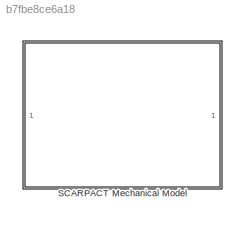
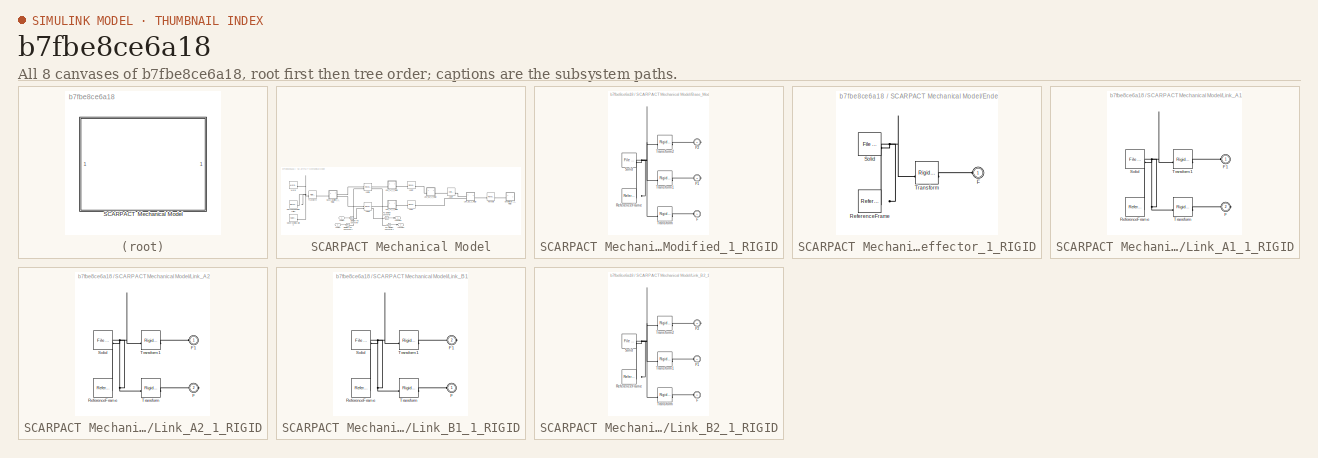
[diagram: thumbnail index - all 8 canvases of the model, root first then tree order]
MODEL slx_b7fbe8ce6a18
KIND model
CONFIG AbsTol = auto
CONFIG EnableMultiTasking = off
CONFIG FixedStep = auto
CONFIG MaxStep = auto
CONFIG MinStep = auto
CONFIG RelTol = 1e-3
CONFIG SampleTimeConstraint = Unconstrained
CONFIG SolverName = VariableStepAuto
CONFIG StartTime = 0.0
CONFIG StopTime = 10.0
WORKSPACE source: external: MATLAB File  (data not in archive)
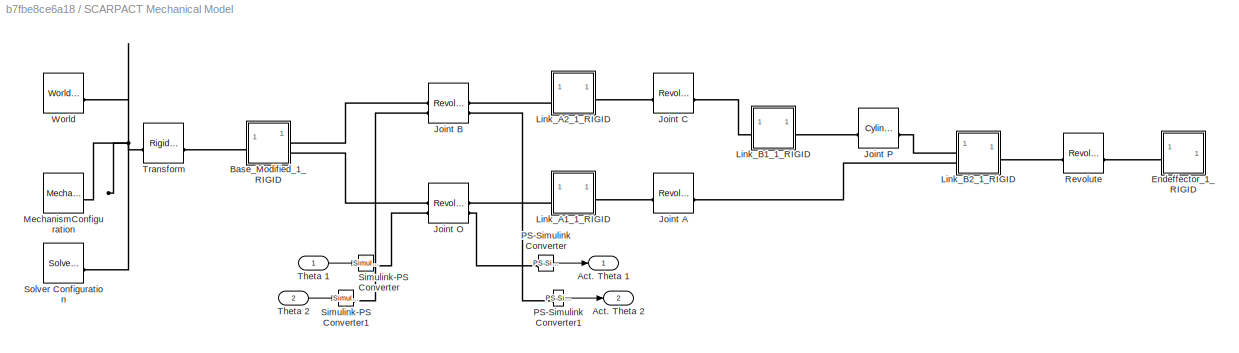
BLOCK [SubSystem] SCARPACT Mechanical Model
BLOCK [Outport] SCARPACT Mechanical Model/Act. Theta 1
BLOCK [Outport] SCARPACT Mechanical Model/Act. Theta 2
  Port = 2
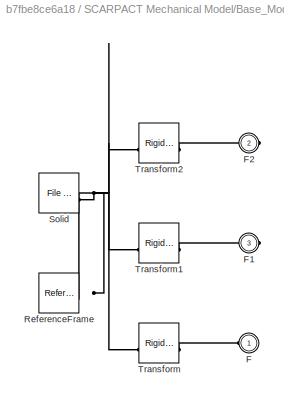
BLOCK [SubSystem] SCARPACT Mechanical Model/Base_Modified_1_RIGID
BLOCK [PMIOPort] SCARPACT Mechanical Model/Base_Modified_1_RIGID/F
  Side = Left
BLOCK [PMIOPort] SCARPACT Mechanical Model/Base_Modified_1_RIGID/F1
  Port = 3
  Side = Right
BLOCK [PMIOPort] SCARPACT Mechanical Model/Base_Modified_1_RIGID/F2
  Port = 2
  Side = Right
BLOCK [Reference] SCARPACT Mechanical Model/Base_Modified_1_RIGID/ReferenceFrame  REF=sm_lib/Frames and
Transforms/Reference
Frame
  SourceBlock = sm_lib/Frames and\nTransforms/Reference\nFrame
  SourceType = Reference\nFrame
BLOCK [Reference] SCARPACT Mechanical Model/Base_Modified_1_RIGID/Solid  REF=sm_lib/Body Elements/File Solid
  SourceBlock = sm_lib/Body Elements/File Solid
  SourceType = File Solid
BLOCK [Reference] SCARPACT Mechanical Model/Base_Modified_1_RIGID/Transform  REF=sm_lib/Frames and
Transforms/Rigid
Transform
  SourceBlock = sm_lib/Frames and\nTransforms/Rigid\nTransform
  SourceType = Rigid\nTransform
BLOCK [Reference] SCARPACT Mechanical Model/Base_Modified_1_RIGID/Transform1  REF=sm_lib/Frames and
Transforms/Rigid
Transform
  SourceBlock = sm_lib/Frames and\nTransforms/Rigid\nTransform
  SourceType = Rigid\nTransform
BLOCK [Reference] SCARPACT Mechanical Model/Base_Modified_1_RIGID/Transform2  REF=sm_lib/Frames and
Transforms/Rigid
Transform
  SourceBlock = sm_lib/Frames and\nTransforms/Rigid\nTransform
  SourceType = Rigid\nTransform
BLOCK [SubSystem] SCARPACT Mechanical Model/Endeffector_1_RIGID
BLOCK [PMIOPort] SCARPACT Mechanical Model/Endeffector_1_RIGID/F
  Side = Left
BLOCK [Reference] SCARPACT Mechanical Model/Endeffector_1_RIGID/ReferenceFrame  REF=sm_lib/Frames and
Transforms/Reference
Frame
  SourceBlock = sm_lib/Frames and\nTransforms/Reference\nFrame
  SourceType = Reference\nFrame
BLOCK [Reference] SCARPACT Mechanical Model/Endeffector_1_RIGID/Solid  REF=sm_lib/Body Elements/File Solid
  SourceBlock = sm_lib/Body Elements/File Solid
  SourceType = File Solid
BLOCK [Reference] SCARPACT Mechanical Model/Endeffector_1_RIGID/Transform  REF=sm_lib/Frames and
Transforms/Rigid
Transform
  SourceBlock = sm_lib/Frames and\nTransforms/Rigid\nTransform
  SourceType = Rigid\nTransform
BLOCK [Reference] SCARPACT Mechanical Model/Joint A  REF=sm_lib/Joints/Revolute Joint
  SourceBlock = sm_lib/Joints/Revolute Joint
  SourceType = Revolute Joint
BLOCK [Reference] SCARPACT Mechanical Model/Joint B  REF=sm_lib/Joints/Revolute Joint
  SourceBlock = sm_lib/Joints/Revolute Joint
  SourceType = Revolute Joint
BLOCK [Reference] SCARPACT Mechanical Model/Joint C  REF=sm_lib/Joints/Revolute Joint
  SourceBlock = sm_lib/Joints/Revolute Joint
  SourceType = Revolute Joint
BLOCK [Reference] SCARPACT Mechanical Model/Joint O  REF=sm_lib/Joints/Revolute Joint
  SourceBlock = sm_lib/Joints/Revolute Joint
  SourceType = Revolute Joint
BLOCK [Reference] SCARPACT Mechanical Model/Joint P  REF=sm_lib/Joints/Cylindrical
Joint
  SourceBlock = sm_lib/Joints/Cylindrical\nJoint
  SourceType = Cylindrical\nJoint
BLOCK [SubSystem] SCARPACT Mechanical Model/Link_A1_1_RIGID
BLOCK [PMIOPort] SCARPACT Mechanical Model/Link_A1_1_RIGID/F
  Port = 2
  Side = Right
BLOCK [PMIOPort] SCARPACT Mechanical Model/Link_A1_1_RIGID/F1
  Side = Left
BLOCK [Reference] SCARPACT Mechanical Model/Link_A1_1_RIGID/ReferenceFrame  REF=sm_lib/Frames and
Transforms/Reference
Frame
  SourceBlock = sm_lib/Frames and\nTransforms/Reference\nFrame
  SourceType = Reference\nFrame
BLOCK [Reference] SCARPACT Mechanical Model/Link_A1_1_RIGID/Solid  REF=sm_lib/Body Elements/File Solid
  SourceBlock = sm_lib/Body Elements/File Solid
  SourceType = File Solid
BLOCK [Reference] SCARPACT Mechanical Model/Link_A1_1_RIGID/Transform  REF=sm_lib/Frames and
Transforms/Rigid
Transform
  SourceBlock = sm_lib/Frames and\nTransforms/Rigid\nTransform
  SourceType = Rigid\nTransform
BLOCK [Reference] SCARPACT Mechanical Model/Link_A1_1_RIGID/Transform1  REF=sm_lib/Frames and
Transforms/Rigid
Transform
  SourceBlock = sm_lib/Frames and\nTransforms/Rigid\nTransform
  SourceType = Rigid\nTransform
BLOCK [SubSystem] SCARPACT Mechanical Model/Link_A2_1_RIGID
BLOCK [PMIOPort] SCARPACT Mechanical Model/Link_A2_1_RIGID/F
  Port = 2
  Side = Right
BLOCK [PMIOPort] SCARPACT Mechanical Model/Link_A2_1_RIGID/F1
  Side = Left
BLOCK [Reference] SCARPACT Mechanical Model/Link_A2_1_RIGID/ReferenceFrame  REF=sm_lib/Frames and
Transforms/Reference
Frame
  SourceBlock = sm_lib/Frames and\nTransforms/Reference\nFrame
  SourceType = Reference\nFrame
BLOCK [Reference] SCARPACT Mechanical Model/Link_A2_1_RIGID/Solid  REF=sm_lib/Body Elements/File Solid
  SourceBlock = sm_lib/Body Elements/File Solid
  SourceType = File Solid
BLOCK [Reference] SCARPACT Mechanical Model/Link_A2_1_RIGID/Transform  REF=sm_lib/Frames and
Transforms/Rigid
Transform
  SourceBlock = sm_lib/Frames and\nTransforms/Rigid\nTransform
  SourceType = Rigid\nTransform
BLOCK [Reference] SCARPACT Mechanical Model/Link_A2_1_RIGID/Transform1  REF=sm_lib/Frames and
Transforms/Rigid
Transform
  SourceBlock = sm_lib/Frames and\nTransforms/Rigid\nTransform
  SourceType = Rigid\nTransform
BLOCK [SubSystem] SCARPACT Mechanical Model/Link_B1_1_RIGID
BLOCK [PMIOPort] SCARPACT Mechanical Model/Link_B1_1_RIGID/F
  Side = Left
BLOCK [PMIOPort] SCARPACT Mechanical Model/Link_B1_1_RIGID/F1
  Port = 2
  Side = Right
BLOCK [Reference] SCARPACT Mechanical Model/Link_B1_1_RIGID/ReferenceFrame  REF=sm_lib/Frames and
Transforms/Reference
Frame
  SourceBlock = sm_lib/Frames and\nTransforms/Reference\nFrame
  SourceType = Reference\nFrame
BLOCK [Reference] SCARPACT Mechanical Model/Link_B1_1_RIGID/Solid  REF=sm_lib/Body Elements/File Solid
  SourceBlock = sm_lib/Body Elements/File Solid
  SourceType = File Solid
BLOCK [Reference] SCARPACT Mechanical Model/Link_B1_1_RIGID/Transform  REF=sm_lib/Frames and
Transforms/Rigid
Transform
  SourceBlock = sm_lib/Frames and\nTransforms/Rigid\nTransform
  SourceType = Rigid\nTransform
BLOCK [Reference] SCARPACT Mechanical Model/Link_B1_1_RIGID/Transform1  REF=sm_lib/Frames and
Transforms/Rigid
Transform
  SourceBlock = sm_lib/Frames and\nTransforms/Rigid\nTransform
  SourceType = Rigid\nTransform
BLOCK [SubSystem] SCARPACT Mechanical Model/Link_B2_1_RIGID
BLOCK [PMIOPort] SCARPACT Mechanical Model/Link_B2_1_RIGID/F
  Port = 2
  Side = Left
BLOCK [PMIOPort] SCARPACT Mechanical Model/Link_B2_1_RIGID/F1
  Side = Left
BLOCK [PMIOPort] SCARPACT Mechanical Model/Link_B2_1_RIGID/F2
  Port = 3
  Side = Right
BLOCK [Reference] SCARPACT Mechanical Model/Link_B2_1_RIGID/ReferenceFrame  REF=sm_lib/Frames and
Transforms/Reference
Frame
  SourceBlock = sm_lib/Frames and\nTransforms/Reference\nFrame
  SourceType = Reference\nFrame
BLOCK [Reference] SCARPACT Mechanical Model/Link_B2_1_RIGID/Solid  REF=sm_lib/Body Elements/File Solid
  SourceBlock = sm_lib/Body Elements/File Solid
  SourceType = File Solid
BLOCK [Reference] SCARPACT Mechanical Model/Link_B2_1_RIGID/Transform  REF=sm_lib/Frames and
Transforms/Rigid
Transform
  SourceBlock = sm_lib/Frames and\nTransforms/Rigid\nTransform
  SourceType = Rigid\nTransform
BLOCK [Reference] SCARPACT Mechanical Model/Link_B2_1_RIGID/Transform1  REF=sm_lib/Frames and
Transforms/Rigid
Transform
  SourceBlock = sm_lib/Frames and\nTransforms/Rigid\nTransform
  SourceType = Rigid\nTransform
BLOCK [Reference] SCARPACT Mechanical Model/Link_B2_1_RIGID/Transform2  REF=sm_lib/Frames and
Transforms/Rigid
Transform
  SourceBlock = sm_lib/Frames and\nTransforms/Rigid\nTransform
  SourceType = Rigid\nTransform
BLOCK [Reference] SCARPACT Mechanical Model/MechanismConfiguration  REF=sm_lib/Utilities/Mechanism
Configuration
  SourceBlock = sm_lib/Utilities/Mechanism\nConfiguration
  SourceType = Mechanism\nConfiguration
BLOCK [Reference] SCARPACT Mechanical Model/PS-Simulink Converter  REF=nesl_utility/PS-Simulink
Converter
  SourceBlock = nesl_utility/PS-Simulink\nConverter
  SourceType = PS-Simulink\nConverter
BLOCK [Reference] SCARPACT Mechanical Model/PS-Simulink Converter1  REF=nesl_utility/PS-Simulink
Converter
  SourceBlock = nesl_utility/PS-Simulink\nConverter
  SourceType = PS-Simulink\nConverter
BLOCK [Reference] SCARPACT Mechanical Model/Revolute  REF=sm_lib/Joints/Revolute Joint
  SourceBlock = sm_lib/Joints/Revolute Joint
  SourceType = Revolute Joint
BLOCK [Reference] SCARPACT Mechanical Model/Simulink-PS Converter  REF=nesl_utility/Simulink-PS
Converter
  SourceBlock = nesl_utility/Simulink-PS\nConverter
  SourceType = Simulink-PS\nConverter
BLOCK [Reference] SCARPACT Mechanical Model/Simulink-PS Converter1  REF=nesl_utility/Simulink-PS
Converter
  SourceBlock = nesl_utility/Simulink-PS\nConverter
  SourceType = Simulink-PS\nConverter
BLOCK [Reference] SCARPACT Mechanical Model/Solver Configuration  REF=nesl_utility/Solver
Configuration
  SourceBlock = nesl_utility/Solver\nConfiguration
  SourceType = Solver\nConfiguration
BLOCK [Inport] SCARPACT Mechanical Model/Theta 1
BLOCK [Inport] SCARPACT Mechanical Model/Theta 2
  Port = 2
BLOCK [Reference] SCARPACT Mechanical Model/Transform  REF=sm_lib/Frames and
Transforms/Rigid
Transform
  SourceBlock = sm_lib/Frames and\nTransforms/Rigid\nTransform
  SourceType = Rigid\nTransform
BLOCK [Reference] SCARPACT Mechanical Model/World  REF=sm_lib/Frames and
Transforms/World Frame
  SourceBlock = sm_lib/Frames and\nTransforms/World Frame
  SourceType = World Frame
LINE SCARPACT Mechanical Model/PS-Simulink Converter1:1 -> SCARPACT Mechanical Model/Act. Theta 2:1
LINE SCARPACT Mechanical Model/PS-Simulink Converter:1 -> SCARPACT Mechanical Model/Act. Theta 1:1
LINE SCARPACT Mechanical Model/Theta 1:1 -> SCARPACT Mechanical Model/Simulink-PS Converter:1
LINE SCARPACT Mechanical Model/Theta 2:1 -> SCARPACT Mechanical Model/Simulink-PS Converter1:1
PLINE SCARPACT Mechanical Model/Base_Modified_1_RIGID/F1:RConn1 -- SCARPACT Mechanical Model/Base_Modified_1_RIGID/Transform1:RConn1
PLINE SCARPACT Mechanical Model/Base_Modified_1_RIGID/F2:RConn1 -- SCARPACT Mechanical Model/Base_Modified_1_RIGID/Transform2:RConn1
PLINE SCARPACT Mechanical Model/Base_Modified_1_RIGID/F:RConn1 -- SCARPACT Mechanical Model/Base_Modified_1_RIGID/Transform:RConn1
PNET net1: SCARPACT Mechanical Model/Base_Modified_1_RIGID/ReferenceFrame:RConn1 -- SCARPACT Mechanical Model/Base_Modified_1_RIGID/Solid:RConn1 -- SCARPACT Mechanical Model/Base_Modified_1_RIGID/Transform1:LConn1 -- SCARPACT Mechanical Model/Base_Modified_1_RIGID/Transform2:LConn1 -- SCARPACT Mechanical Model/Base_Modified_1_RIGID/Transform:LConn1
PLINE SCARPACT Mechanical Model/Base_Modified_1_RIGID:LConn1 -- SCARPACT Mechanical Model/Transform:RConn1
PLINE SCARPACT Mechanical Model/Base_Modified_1_RIGID:RConn1 -- SCARPACT Mechanical Model/Joint B:LConn1
PLINE SCARPACT Mechanical Model/Base_Modified_1_RIGID:RConn2 -- SCARPACT Mechanical Model/Joint O:LConn1
PLINE SCARPACT Mechanical Model/Endeffector_1_RIGID/F:RConn1 -- SCARPACT Mechanical Model/Endeffector_1_RIGID/Transform:RConn1
PNET net2: SCARPACT Mechanical Model/Endeffector_1_RIGID/ReferenceFrame:RConn1 -- SCARPACT Mechanical Model/Endeffector_1_RIGID/Solid:RConn1 -- SCARPACT Mechanical Model/Endeffector_1_RIGID/Transform:LConn1
PLINE SCARPACT Mechanical Model/Endeffector_1_RIGID:LConn1 -- SCARPACT Mechanical Model/Revolute:RConn1
PLINE SCARPACT Mechanical Model/Joint A:LConn1 -- SCARPACT Mechanical Model/Link_A1_1_RIGID:RConn1
PLINE SCARPACT Mechanical Model/Joint A:RConn1 -- SCARPACT Mechanical Model/Link_B2_1_RIGID:LConn2
PLINE SCARPACT Mechanical Model/Joint B:LConn2 -- SCARPACT Mechanical Model/Simulink-PS Converter1:RConn1
PLINE SCARPACT Mechanical Model/Joint B:RConn1 -- SCARPACT Mechanical Model/Link_A2_1_RIGID:LConn1
PLINE SCARPACT Mechanical Model/Joint B:RConn2 -- SCARPACT Mechanical Model/PS-Simulink Converter1:LConn1
PLINE SCARPACT Mechanical Model/Joint C:LConn1 -- SCARPACT Mechanical Model/Link_A2_1_RIGID:RConn1
PLINE SCARPACT Mechanical Model/Joint C:RConn1 -- SCARPACT Mechanical Model/Link_B1_1_RIGID:LConn1
PLINE SCARPACT Mechanical Model/Joint O:LConn2 -- SCARPACT Mechanical Model/Simulink-PS Converter:RConn1
PLINE SCARPACT Mechanical Model/Joint O:RConn1 -- SCARPACT Mechanical Model/Link_A1_1_RIGID:LConn1
PLINE SCARPACT Mechanical Model/Joint O:RConn2 -- SCARPACT Mechanical Model/PS-Simulink Converter:LConn1
PLINE SCARPACT Mechanical Model/Joint P:LConn1 -- SCARPACT Mechanical Model/Link_B1_1_RIGID:RConn1
PLINE SCARPACT Mechanical Model/Joint P:RConn1 -- SCARPACT Mechanical Model/Link_B2_1_RIGID:LConn1
PLINE SCARPACT Mechanical Model/Link_A1_1_RIGID/F1:RConn1 -- SCARPACT Mechanical Model/Link_A1_1_RIGID/Transform1:RConn1
PLINE SCARPACT Mechanical Model/Link_A1_1_RIGID/F:RConn1 -- SCARPACT Mechanical Model/Link_A1_1_RIGID/Transform:RConn1
PNET net3: SCARPACT Mechanical Model/Link_A1_1_RIGID/ReferenceFrame:RConn1 -- SCARPACT Mechanical Model/Link_A1_1_RIGID/Solid:RConn1 -- SCARPACT Mechanical Model/Link_A1_1_RIGID/Transform1:LConn1 -- SCARPACT Mechanical Model/Link_A1_1_RIGID/Transform:LConn1
PLINE SCARPACT Mechanical Model/Link_A2_1_RIGID/F1:RConn1 -- SCARPACT Mechanical Model/Link_A2_1_RIGID/Transform1:RConn1
PLINE SCARPACT Mechanical Model/Link_A2_1_RIGID/F:RConn1 -- SCARPACT Mechanical Model/Link_A2_1_RIGID/Transform:RConn1
PNET net4: SCARPACT Mechanical Model/Link_A2_1_RIGID/ReferenceFrame:RConn1 -- SCARPACT Mechanical Model/Link_A2_1_RIGID/Solid:RConn1 -- SCARPACT Mechanical Model/Link_A2_1_RIGID/Transform1:LConn1 -- SCARPACT Mechanical Model/Link_A2_1_RIGID/Transform:LConn1
PLINE SCARPACT Mechanical Model/Link_B1_1_RIGID/F1:RConn1 -- SCARPACT Mechanical Model/Link_B1_1_RIGID/Transform1:RConn1
PLINE SCARPACT Mechanical Model/Link_B1_1_RIGID/F:RConn1 -- SCARPACT Mechanical Model/Link_B1_1_RIGID/Transform:RConn1
PNET net5: SCARPACT Mechanical Model/Link_B1_1_RIGID/ReferenceFrame:RConn1 -- SCARPACT Mechanical Model/Link_B1_1_RIGID/Solid:RConn1 -- SCARPACT Mechanical Model/Link_B1_1_RIGID/Transform1:LConn1 -- SCARPACT Mechanical Model/Link_B1_1_RIGID/Transform:LConn1
PLINE SCARPACT Mechanical Model/Link_B2_1_RIGID/F1:RConn1 -- SCARPACT Mechanical Model/Link_B2_1_RIGID/Transform1:RConn1
PLINE SCARPACT Mechanical Model/Link_B2_1_RIGID/F2:RConn1 -- SCARPACT Mechanical Model/Link_B2_1_RIGID/Transform2:RConn1
PLINE SCARPACT Mechanical Model/Link_B2_1_RIGID/F:RConn1 -- SCARPACT Mechanical Model/Link_B2_1_RIGID/Transform:RConn1
PNET net6: SCARPACT Mechanical Model/Link_B2_1_RIGID/ReferenceFrame:RConn1 -- SCARPACT Mechanical Model/Link_B2_1_RIGID/Solid:RConn1 -- SCARPACT Mechanical Model/Link_B2_1_RIGID/Transform1:LConn1 -- SCARPACT Mechanical Model/Link_B2_1_RIGID/Transform2:LConn1 -- SCARPACT Mechanical Model/Link_B2_1_RIGID/Transform:LConn1
PLINE SCARPACT Mechanical Model/Link_B2_1_RIGID:RConn1 -- SCARPACT Mechanical Model/Revolute:LConn1
PNET net7: SCARPACT Mechanical Model/MechanismConfiguration:RConn1 -- SCARPACT Mechanical Model/Solver Configuration:RConn1 -- SCARPACT Mechanical Model/Transform:LConn1 -- SCARPACT Mechanical Model/World:RConn1
note: PNET lines group multi-terminal physical nets as a canonical sorted terminal list (undirected conserving connections); 2-terminal nets keep the pairwise PLINE form
